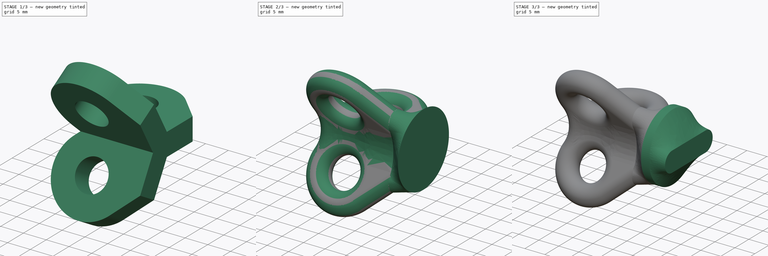
[diagram: build sequence overview — one tinted view per stage of 3, left to right]
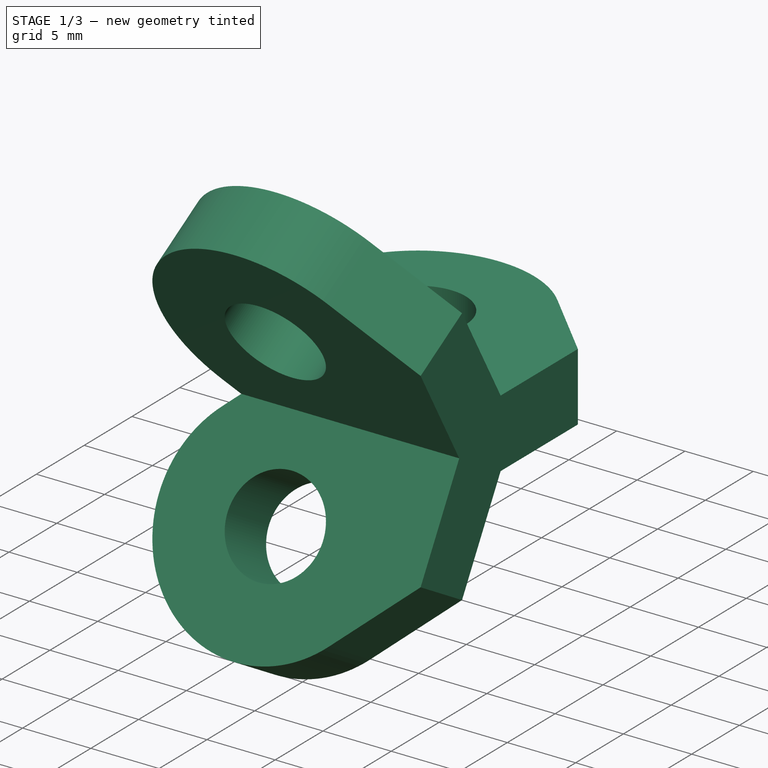
[diagram: stage 1 of 3 — iso view after this stage's code; geometry added in this stage tinted green]
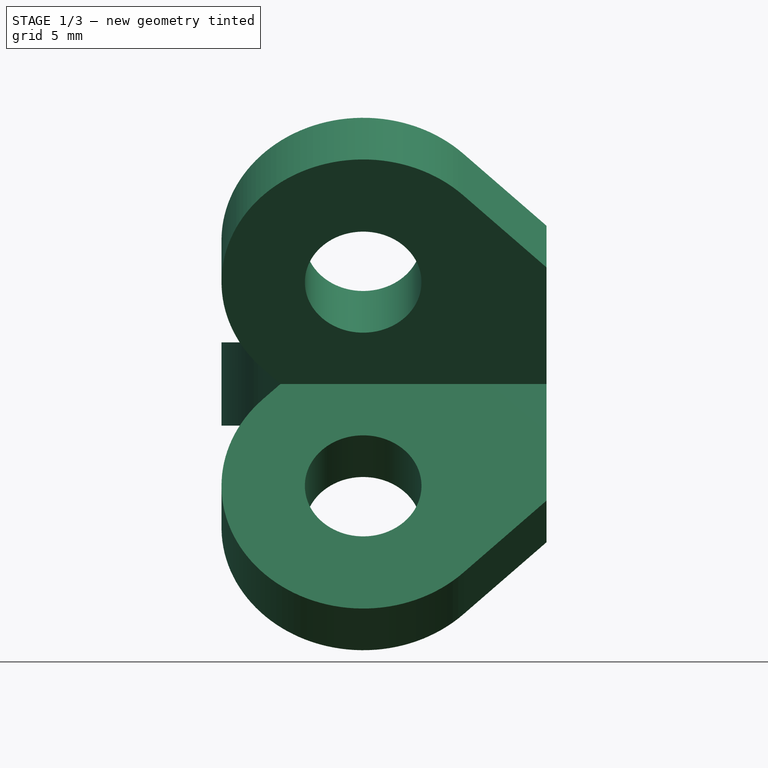
[diagram: stage 1 of 3 — front view after this stage's code; geometry added in this stage tinted green]
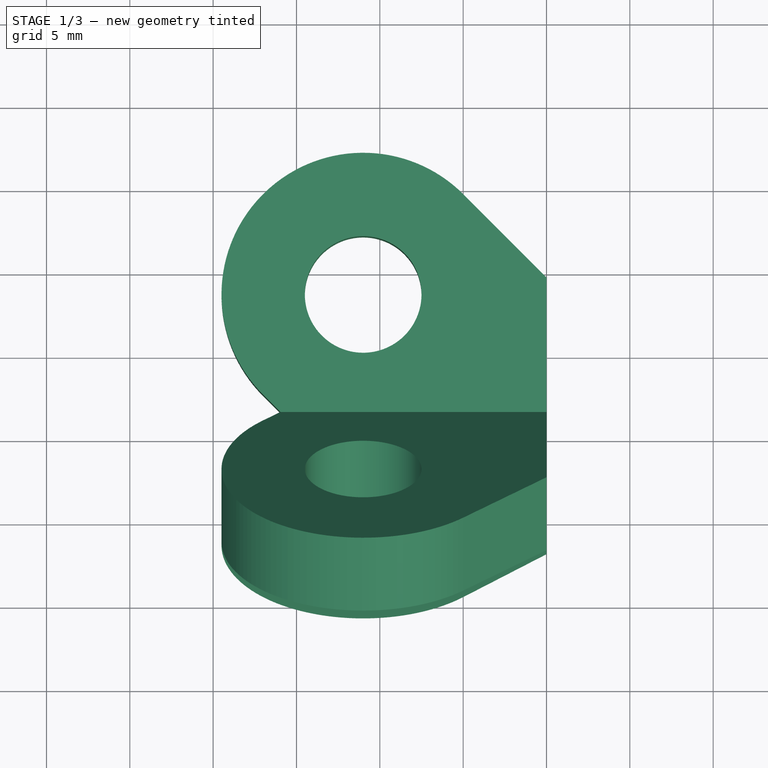
[diagram: stage 1 of 3 — top view after this stage's code; geometry added in this stage tinted green]
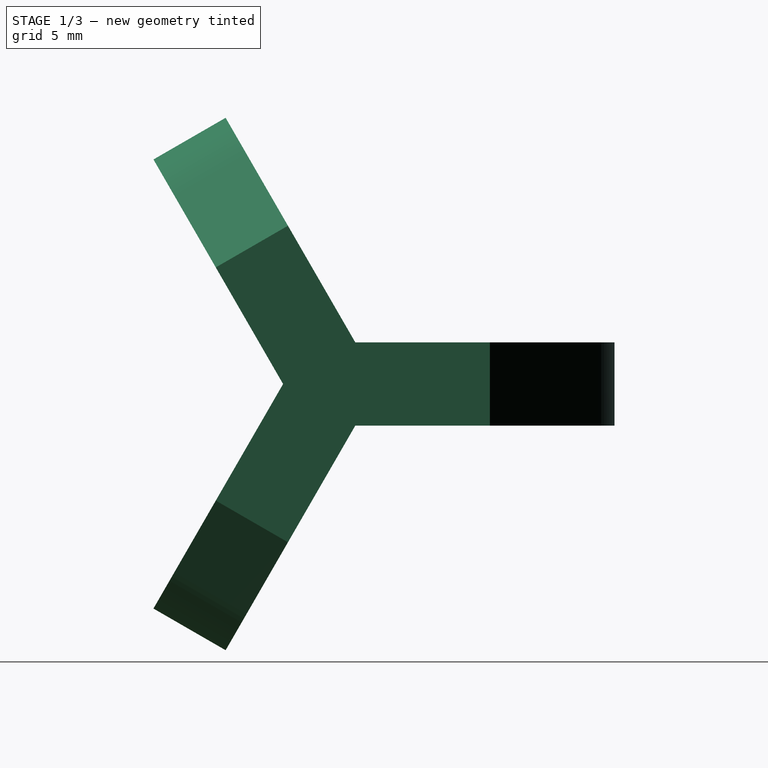
[diagram: stage 1 of 3 — right view after this stage's code; geometry added in this stage tinted green]
FCSTD DOCUMENT  (FreeCAD 0.21R33771 (Git))
Label: _QuadroLink_Neu
License: Creative Commons Attribution 4.0
LicenseURL: https://creativecommons.org/licenses/by/4.0/
objects: Sketcher::SketchObject×6, PartDesign::Pad×2, PartDesign::Fillet×2, PartDesign::AdditiveLoft×2, Part::Feature×1, PartDesign::PolarPattern×1, PartDesign::Body×1
note: 21 computed .brp shape members not serialized (recipe doc carries the construction recipe); baked Part::Feature solids carry a one-line shape summary decoded from their .brp

FEATURE [Part::Feature] Body006  label="QuadroLink001"
  shape: bbox 36.4 x 27.7 x 31.07 mm, 19 faces (baked)
FEATURE [Sketcher::SketchObject] Sketch
  FullyConstrained = true
  MapMode = 5
  Support = -> [XY_Plane]
  sketch-geometry (6):
    g0: LineSegment StartX=-14.5208 StartY=0 StartZ=0 EndX=-17.0104 EndY=2.48959 EndZ=0
    g1: ArcOfCircle CenterX=-11 CenterY=8.5 CenterZ=0 NormalX=0 NormalY=0 NormalZ=1 AngleXU=0 Radius=8.5 StartAngle=0.785398 EndAngle=3.92699
    g2: LineSegment StartX=-4.98959 StartY=14.5104 StartZ=0 EndX=0 EndY=9.52082 EndZ=0
    g3: LineSegment StartX=0 StartY=9.52082 StartZ=0 EndX=0 EndY=0 EndZ=0
    g4: LineSegment StartX=0 StartY=0 StartZ=0 EndX=-14.5208 EndY=0 EndZ=0
    g5: Circle CenterX=-11 CenterY=8.5 CenterZ=0 NormalX=0 NormalY=0 NormalZ=1 AngleXU=0 Radius=3.5
  constraints (15):
    c: PointOnObject(g0,g-1)
    c: Tangent(g0,g1) = 1.5708
    c: Tangent(g1,g2) = 1.5708
    c: Coincident(g2,g3)
    c: Vertical(g3)
    c: Coincident(g3,g4)
    c: Coincident(g4,g0)
    c: Coincident(g3,g-1)
    c: Radius(g1) = 8.5
    c: DistanceX(g1,g3) = 11
    c: DistanceY(g3,g1) = 8.5
    c: Angle(g2,g-2) = 2.35619
    c: Parallel(g2,g0)
    c: Coincident(g5,g1)
    c: Diameter(g5) = 7
FEATURE [PartDesign::Pad] Pad
  Direction = (0,0,1)
  Length = 5
  Length2 = 10
  Midplane = true
  Profile = -> Sketch
  ReferenceAxis = -> Sketch [N_Axis]
  Refine = true
  Type = 0
FEATURE [PartDesign::PolarPattern] PolarPattern
  Angle = 360
  Axis = -> X_Axis
  BaseFeature = -> Pad
  Occurrences = 3
  Originals = -> [Pad]
  Refine = true
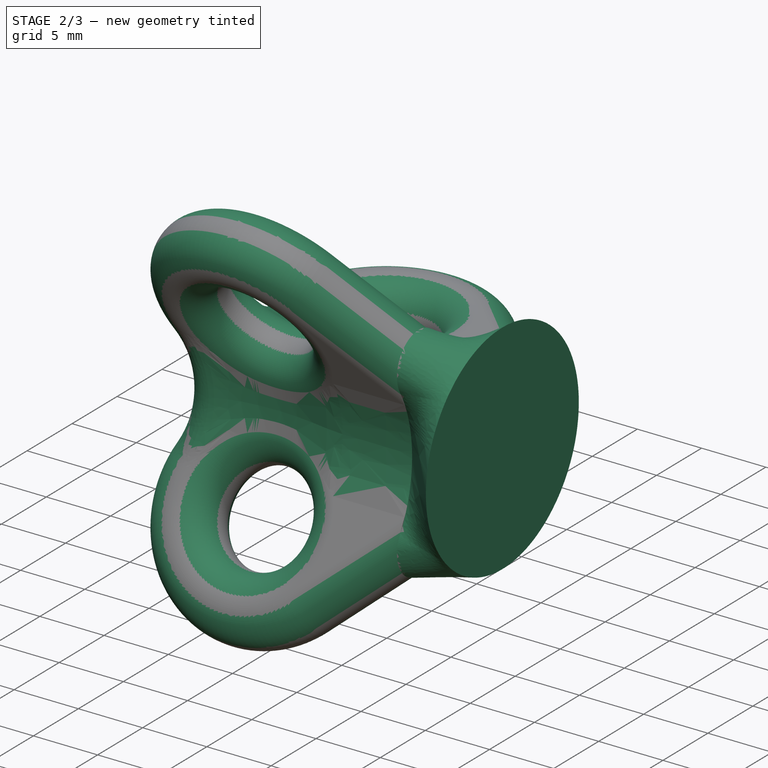
[diagram: stage 2 of 3 — iso view after this stage's code; geometry added in this stage tinted green]
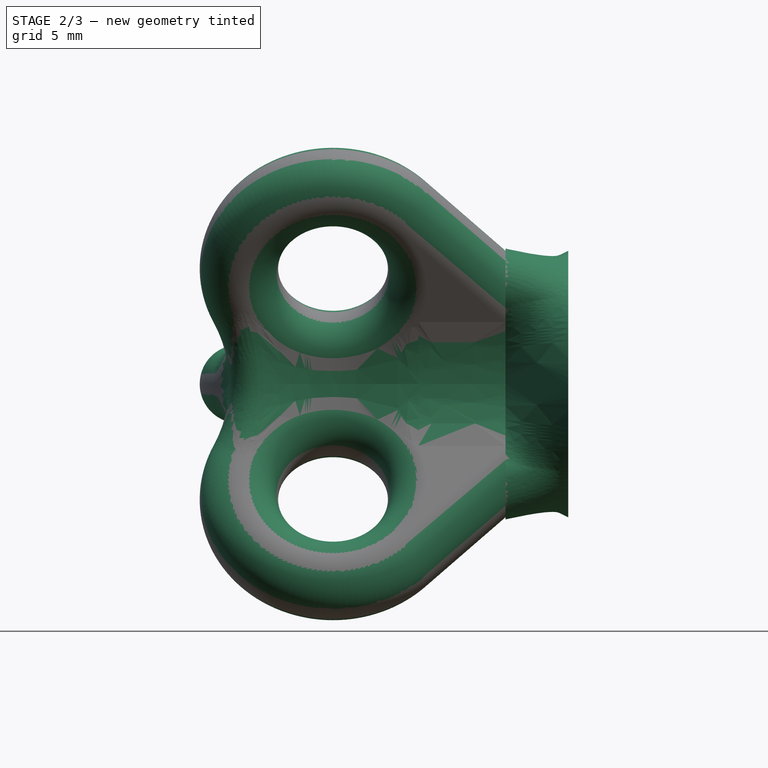
[diagram: stage 2 of 3 — front view after this stage's code; geometry added in this stage tinted green]
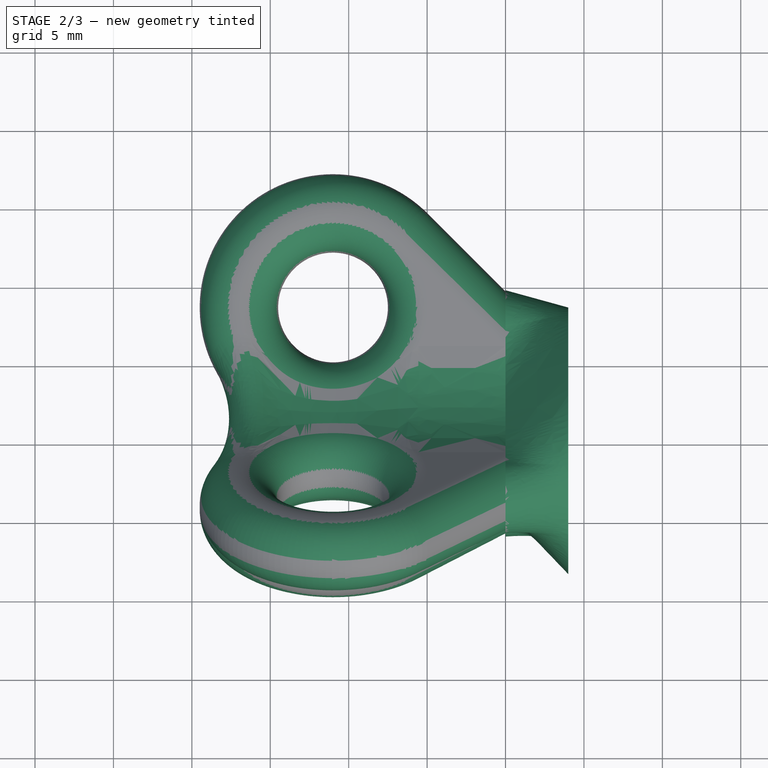
[diagram: stage 2 of 3 — top view after this stage's code; geometry added in this stage tinted green]
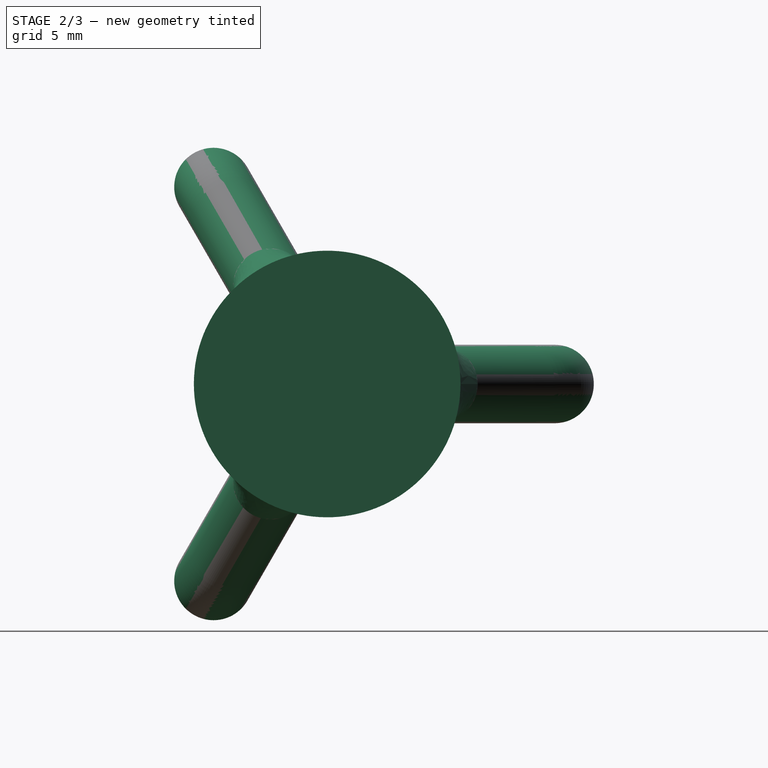
[diagram: stage 2 of 3 — right view after this stage's code; geometry added in this stage tinted green]
FEATURE [PartDesign::Fillet] Fillet
  Base = -> PolarPattern [Edge16,Edge24,Edge41,Edge32,Edge11,Edge2,Edge19,Edge14,Edge6,Edge35,Edge44,Edge27]
  BaseFeature = -> PolarPattern
  Radius = 2.49
  Refine = true
  SupportTransform = false
  UseAllEdges = false
FEATURE [PartDesign::Fillet] Fillet001
  Base = -> Fillet [Edge51,Edge3,Edge41]
  BaseFeature = -> Fillet
  Radius = 7.9
  Refine = true
  SupportTransform = false
  UseAllEdges = false
FEATURE [Sketcher::SketchObject] Sketch001
  FullyConstrained = true
  MapMode = 5
  Placement = pos=(0,0,0) rot=(0.57735,0.57735,0.57735;2.0944rad)
  Support = -> [YZ_Plane]
  sketch-geometry (9):
    g0: Circle CenterX=0 CenterY=0 CenterZ=0 NormalX=0 NormalY=0 NormalZ=1 AngleXU=0 Radius=7.2
    g1: ArcOfCircle CenterX=-3.6 CenterY=6.23538 CenterZ=0 NormalX=0 NormalY=0 NormalZ=1 AngleXU=0 Radius=2.4 StartAngle=0.520301 EndAngle=3.66849
    g2: ArcOfCircle CenterX=7.2 CenterY=0 CenterZ=0 NormalX=0 NormalY=0 NormalZ=1 AngleXU=0 Radius=2.4 StartAngle=4.70909 EndAngle=7.85728
    g3: ArcOfCircle CenterX=-3.6 CenterY=-6.23538 CenterZ=0 NormalX=0 NormalY=0 NormalZ=1 AngleXU=0 Radius=2.4 StartAngle=2.6147 EndAngle=5.76288
    g4: ArcOfCircle CenterX=-14.3182 CenterY=0 CenterZ=0 NormalX=0 NormalY=0 NormalZ=1 AngleXU=0 Radius=10 StartAngle=5.75629 EndAngle=6.81008
    g5: ArcOfCircle CenterX=7.1591 CenterY=-12.3999 CenterZ=0 NormalX=0 NormalY=0 NormalZ=1 AngleXU=0 Radius=10 StartAngle=1.5675 EndAngle=2.62129
    g6: ArcOfCircle CenterX=7.1591 CenterY=12.3999 CenterZ=0 NormalX=0 NormalY=0 NormalZ=1 AngleXU=0 Radius=10 StartAngle=3.66189 EndAngle=4.71569
    g7: LineSegment StartX=0 StartY=0 StartZ=0 EndX=-3.6 EndY=-6.23538 EndZ=0
    g8: LineSegment StartX=-3.6 StartY=6.23538 StartZ=0 EndX=0 EndY=0 EndZ=0
  constraints (24):
    c: PointOnObject(g1,g0)
    c: PointOnObject(g2,g0)
    c: PointOnObject(g3,g0)
    c: PointOnObject(g4,g-1)
    c: Tangent(g6,g2) = 1.5708
    c: Tangent(g5,g2) = 1.5708
    c: Tangent(g6,g1) = 1.5708
    c: Tangent(g4,g1) = 1.5708
    c: Tangent(g4,g3) = 1.5708
    c: Tangent(g5,g3) = 1.5708
    c: PointOnObject(g2,g-1)
    c: Coincident(g0,g-1)
    c: Equal(g2,g3)
    c: Equal(g3,g1)
    c: Equal(g5,g4)
    c: Equal(g4,g6)
    c: Coincident(g7,g0)
    c: Coincident(g7,g3)
    c: Radius(g2) = 2.4
    c: Coincident(g8,g1)
    c: Coincident(g8,g0)
    c: Angle(g-1,g8) = 2.0944
    c: Diameter(g0) = 14.4
    c: Radius(g6) = 10
FEATURE [Sketcher::SketchObject] Sketch002
  AttachmentOffset = pos=(0,0,4) rot=(0,0,1;0rad)
  FullyConstrained = true
  MapMode = 5
  Placement = pos=(4,-9e-16,9e-16) rot=(0.57735,0.57735,0.57735;2.0944rad)
  Support = -> [YZ_Plane]
  sketch-geometry (1):
    g0: Circle CenterX=0 CenterY=0 CenterZ=0 NormalX=0 NormalY=0 NormalZ=1 AngleXU=0 Radius=8.5
  constraints (2):
    c: Coincident(g0,g-1)
    c: Diameter(g0) = 17
FEATURE [PartDesign::AdditiveLoft] AdditiveLoft
  BaseFeature = -> Fillet001
  Closed = false
  Profile = -> Sketch001
  Refine = true
  Ruled = false
  Sections = -> [Sketch002]
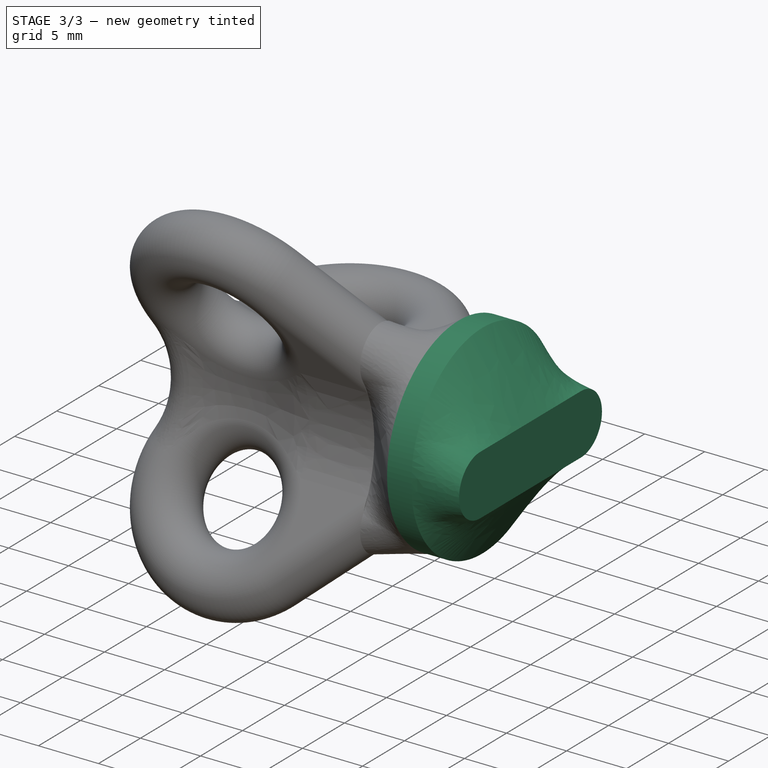
[diagram: stage 3 of 3 — iso view after this stage's code; geometry added in this stage tinted green]
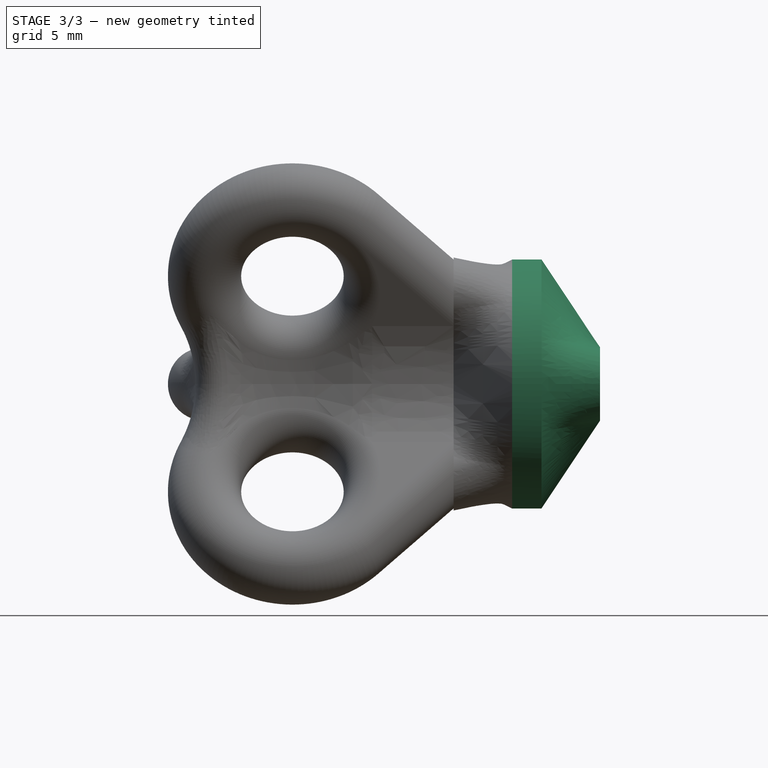
[diagram: stage 3 of 3 — front view after this stage's code; geometry added in this stage tinted green]
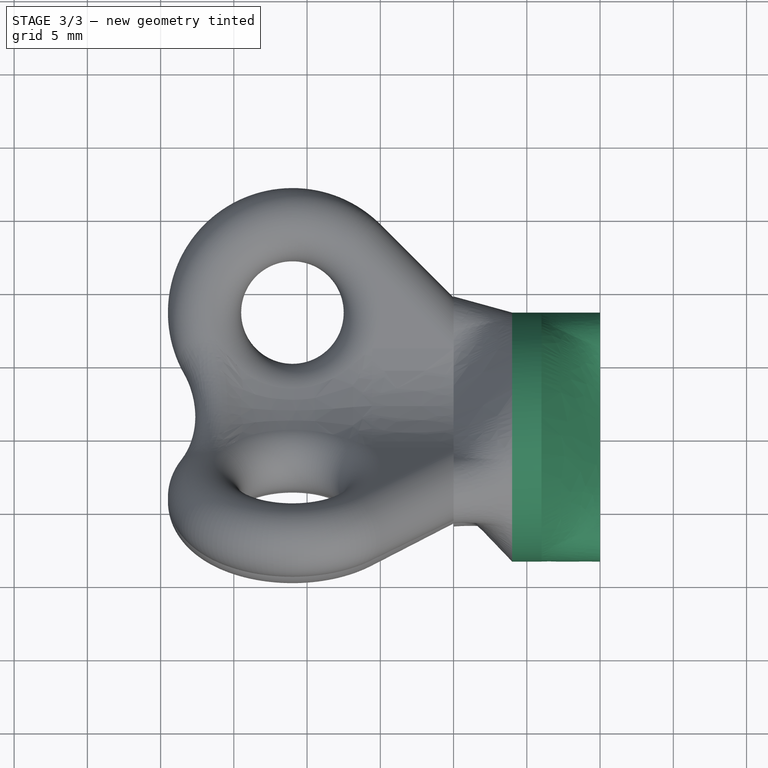
[diagram: stage 3 of 3 — top view after this stage's code; geometry added in this stage tinted green]
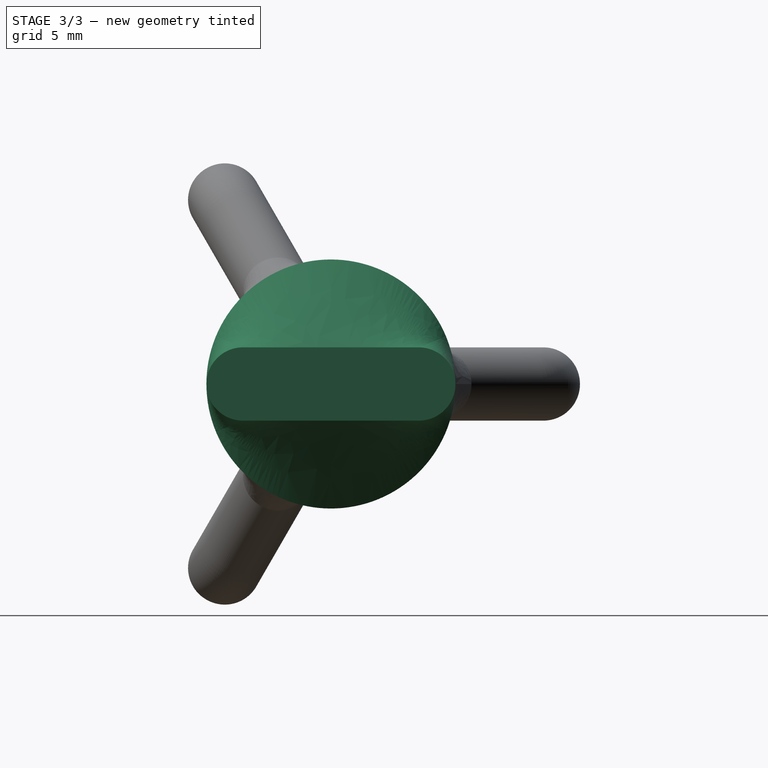
[diagram: stage 3 of 3 — right view after this stage's code; geometry added in this stage tinted green]
FEATURE [Sketcher::SketchObject] Sketch003
  AttachmentOffset = pos=(0,0,4) rot=(0,0,1;0rad)
  FullyConstrained = true
  MapMode = 5
  Placement = pos=(4,-9e-16,9e-16) rot=(0.57735,0.57735,0.57735;2.0944rad)
  Support = -> [YZ_Plane]
  sketch-geometry (1):
    g0: Circle CenterX=0 CenterY=0 CenterZ=0 NormalX=0 NormalY=0 NormalZ=1 AngleXU=0 Radius=8.5
  constraints (2):
    c: Coincident(g0,g-1)
    c: Diameter(g0) = 17
FEATURE [Sketcher::SketchObject] Sketch004
  AttachmentOffset = pos=(0,0,6) rot=(0,0,1;0rad)
  FullyConstrained = true
  MapMode = 5
  Placement = pos=(6,-1.3e-15,1.3e-15) rot=(0.57735,0.57735,0.57735;2.0944rad)
  Support = -> [YZ_Plane]
  sketch-geometry (1):
    g0: Circle CenterX=0 CenterY=0 CenterZ=0 NormalX=0 NormalY=0 NormalZ=1 AngleXU=0 Radius=8.5
  constraints (2):
    c: Coincident(g0,g-1)
    c: Diameter(g0) = 17
FEATURE [PartDesign::Pad] Pad001
  BaseFeature = -> AdditiveLoft
  Direction = (1,-2e-16,3e-16)
  Length = 2
  Length2 = 10
  Profile = -> Sketch003
  ReferenceAxis = -> Sketch003 [N_Axis]
  Refine = true
  Type = 0
FEATURE [Sketcher::SketchObject] Sketch005
  AttachmentOffset = pos=(0,0,10) rot=(0,0,1;0rad)
  FullyConstrained = true
  MapMode = 5
  Placement = pos=(10,-2.2e-15,2.2e-15) rot=(0.57735,0.57735,0.57735;2.0944rad)
  Support = -> [YZ_Plane]
  sketch-geometry (4):
    g0: ArcOfCircle CenterX=-6 CenterY=0 CenterZ=0 NormalX=0 NormalY=0 NormalZ=1 AngleXU=0 Radius=2.5 StartAngle=1.5708 EndAngle=4.71239
    g1: ArcOfCircle CenterX=6 CenterY=0 CenterZ=0 NormalX=0 NormalY=0 NormalZ=1 AngleXU=0 Radius=2.5 StartAngle=4.71239 EndAngle=7.85398
    g2: LineSegment StartX=-6 StartY=-2.5 StartZ=0 EndX=6 EndY=-2.5 EndZ=0
    g3: LineSegment StartX=6 StartY=2.5 StartZ=0 EndX=-6 EndY=2.5 EndZ=0
  constraints (9):
    c: Tangent(g0,g2) = -1.5708
    c: Tangent(g2,g1) = -1.5708
    c: Tangent(g1,g3) = -1.5708
    c: Tangent(g3,g0) = -1.5708
    c: Equal(g0,g1)
    c: Symmetric(g1,g0,g-2)
    c: PointOnObject(g0,g-1)
    c: DistanceY(g0,g0) = 5
    c: DistanceX(g0,g1) = 12
FEATURE [PartDesign::AdditiveLoft] AdditiveLoft001
  BaseFeature = -> Pad001
  Closed = false
  Profile = -> Sketch004
  Refine = true
  Ruled = false
  Sections = -> [Sketch005]
FEATURE [PartDesign::Body] Body  label="QuadroLink"
  Group = -> [Sketch,Pad,PolarPattern,Fillet,Fillet001,Sketch001,Sketch002,AdditiveLoft,Sketch003,Pad001,Sketch004,Sketch005,AdditiveLoft001]
  Origin = -> Origin
  Tip = -> AdditiveLoft001
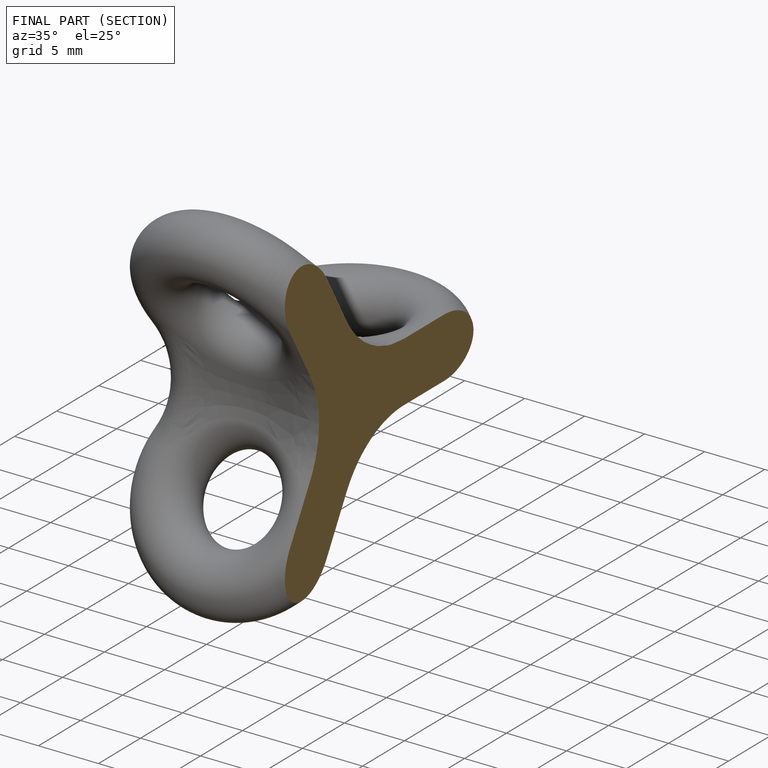
[diagram: finished part — half-section view (interior)]
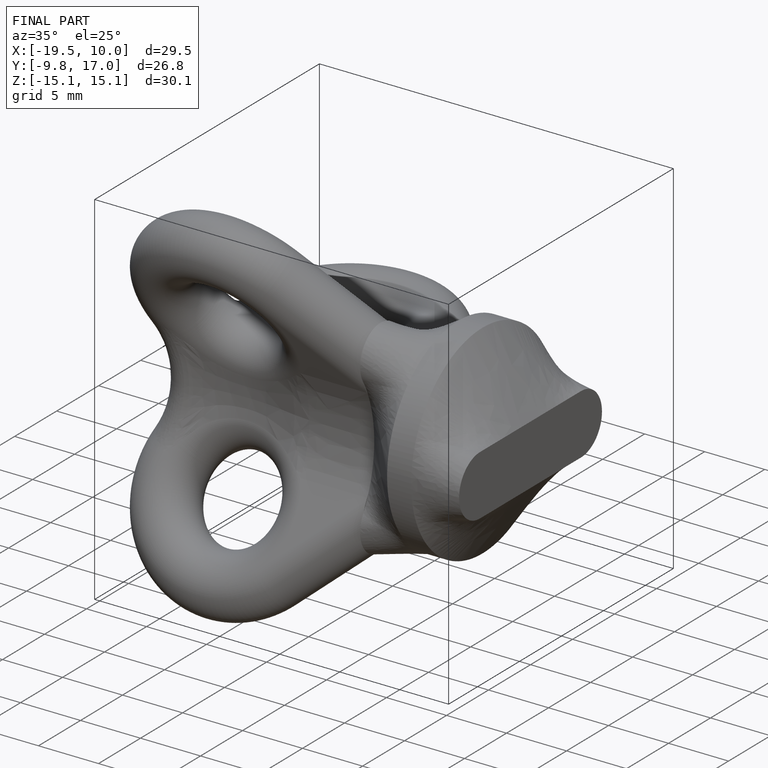
[diagram: finished part — iso view with bounding-box wireframe]
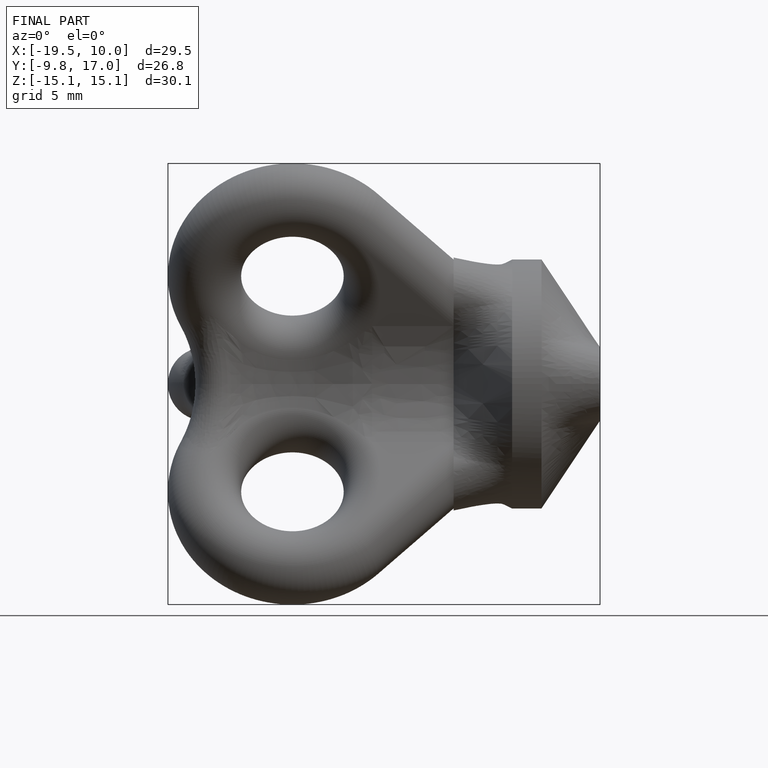
[diagram: finished part — front view with bounding-box wireframe]
